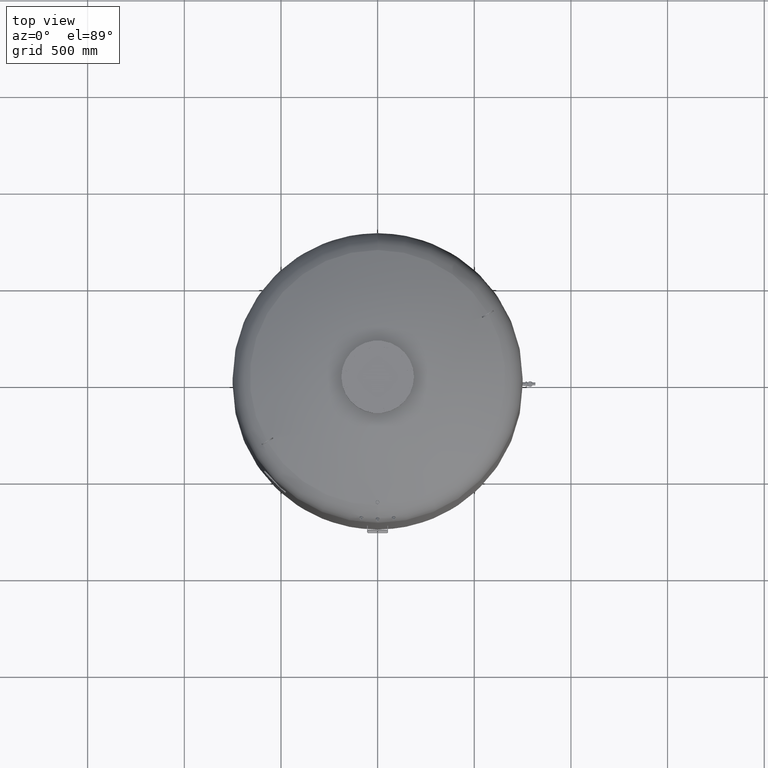
[diagram: clean part render]
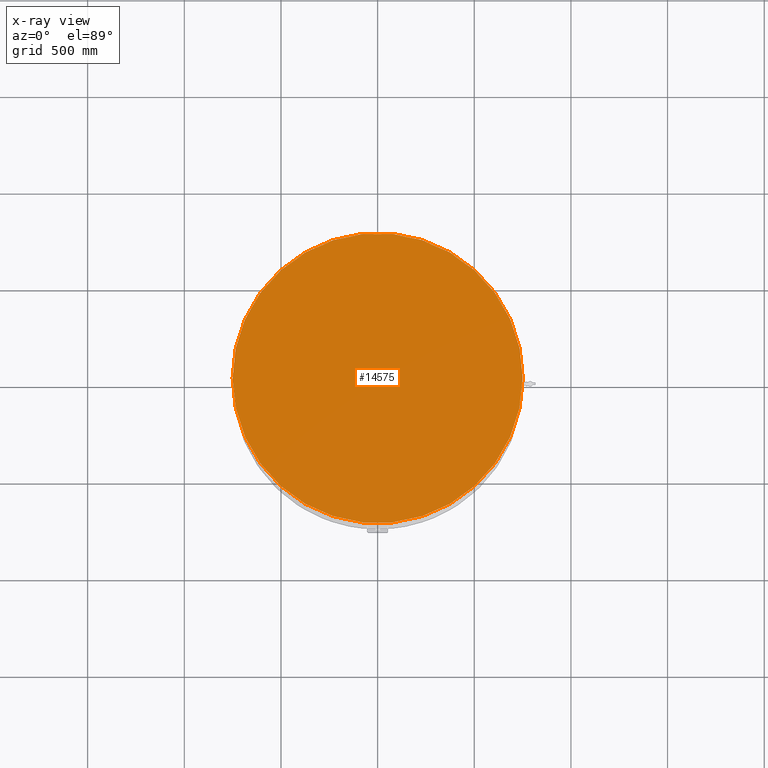
[diagram: x-ray — body ghosted, one internal face saturated and labeled with its STEP entity id]
A machine part, top view, then the same camera in x-ray: the body is ghosted and one INTERNAL B-rep face — a face not visible from any outside direction — is saturated and labeled: STEP entity #14575.
In plain terms, the highlighted planar face has unit normal (0, 0, 1).
Its self-contained STEP definition (entity closure, byte-faithful):
#14365=CARTESIAN_POINT('',(750.0,0.0,2670.0));
#14366=VERTEX_POINT('',#14365);
#14375=CARTESIAN_POINT('',(-750.0,-9.184548E-014,2670.0));
#14376=VERTEX_POINT('',#14375);
#14377=CARTESIAN_POINT('',(1.668796E-014,0.0,2670.0));
#14378=DIRECTION('',(0.0,0.0,1.0));
#14379=DIRECTION('',(1.0,0.0,0.0));
#14380=AXIS2_PLACEMENT_3D('',#14377,#14378,#14379);
#14381=CIRCLE('',#14380,750.0);
#14382=EDGE_CURVE('',#14376,#14366,#14381,.T.);
#14556=CARTESIAN_POINT('',(1.668796E-014,0.0,2670.0));
#14557=DIRECTION('',(0.0,0.0,1.0));
#14558=DIRECTION('',(1.0,0.0,0.0));
#14559=AXIS2_PLACEMENT_3D('',#14556,#14557,#14558);
#14560=CIRCLE('',#14559,750.0);
#14561=EDGE_CURVE('',#14366,#14376,#14560,.T.);
#14566=CARTESIAN_POINT('',(375.0,0.0,2670.0));
#14567=DIRECTION('',(0.0,0.0,1.0));
#14568=DIRECTION('',(1.0,0.0,0.0));
#14569=AXIS2_PLACEMENT_3D('',#14566,#14567,#14568);
#14570=PLANE('',#14569);
#14571=ORIENTED_EDGE('',*,*,#14561,.T.);
#14572=ORIENTED_EDGE('',*,*,#14382,.T.);
#14573=EDGE_LOOP('',(#14571,#14572));
#14574=FACE_OUTER_BOUND('',#14573,.T.);
#14575=ADVANCED_FACE('',(#14574),#14570,.T.);